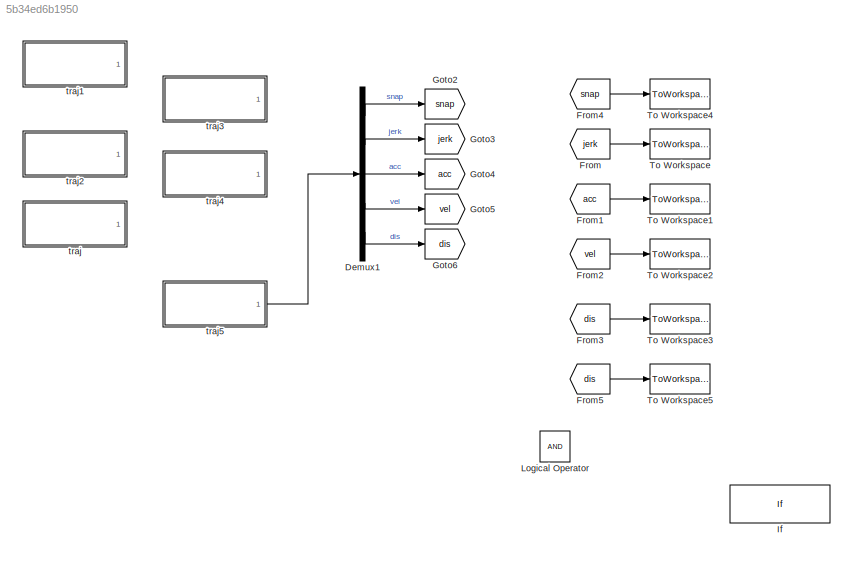
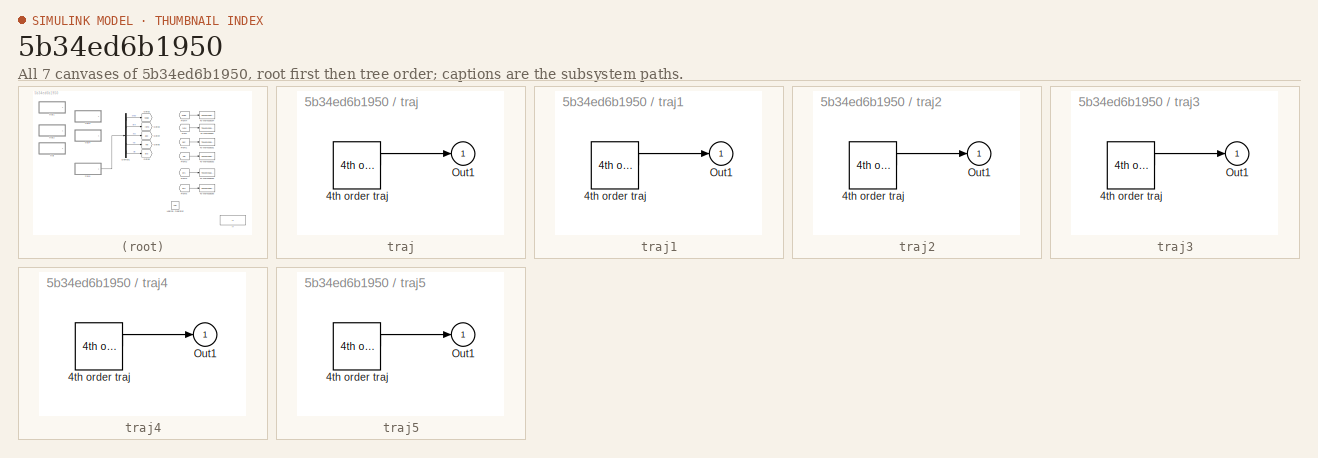
[diagram: thumbnail index - all 7 canvases of the model, root first then tree order]
MODEL slx_5b34ed6b1950
KIND model
CONFIG AbsTol = auto
CONFIG EnableMultiTasking = off
CONFIG FixedStep = 5e-5
CONFIG MaxStep = 0.0002
CONFIG MinStep = auto
CONFIG RelTol = 1e-3
CONFIG SampleTimeConstraint = Unconstrained
CONFIG Solver = VariableStepAuto
CONFIG SolverName = VariableStepAuto
CONFIG StartTime = 0.0
CONFIG StopTime = 1.6
BLOCK [Demux] Demux1
  DisplayOption = bar
  Outputs = 5
  Ports = [1, 5]
BLOCK [From] From
  GotoTag = jerk
BLOCK [From] From1
  GotoTag = acc
BLOCK [From] From2
  GotoTag = vel
BLOCK [From] From3
  GotoTag = dis
BLOCK [From] From4
  GotoTag = snap
BLOCK [From] From5
  GotoTag = dis
BLOCK [Goto] Goto2
  GotoTag = snap
BLOCK [Goto] Goto3
  GotoTag = jerk
BLOCK [Goto] Goto4
  GotoTag = acc
BLOCK [Goto] Goto5
  GotoTag = vel
BLOCK [Goto] Goto6
  GotoTag = dis
BLOCK [If] If
  Ports = [1, 2]
BLOCK [Logic] Logical Operator
  AllPortsSameDT = off
  OutDataTypeStr = boolean
  Ports = [2, 1]
BLOCK [ToWorkspace] To Workspace
  FixptAsFi = on
  MaxDataPoints = inf
  Ports = [1]
  SampleTime = -1
  Save2DSignal = 3-D array (concatenate along third dimension)
  SaveFormat = Structure With Time
  VariableName = jerk
BLOCK [ToWorkspace] To Workspace1
  FixptAsFi = on
  MaxDataPoints = inf
  Ports = [1]
  SampleTime = -1
  Save2DSignal = 3-D array (concatenate along third dimension)
  SaveFormat = Structure With Time
  VariableName = acc
BLOCK [ToWorkspace] To Workspace2
  FixptAsFi = on
  MaxDataPoints = inf
  Ports = [1]
  SampleTime = -1
  Save2DSignal = 3-D array (concatenate along third dimension)
  SaveFormat = Structure With Time
  VariableName = vel
BLOCK [ToWorkspace] To Workspace3
  FixptAsFi = on
  MaxDataPoints = inf
  Ports = [1]
  SampleTime = -1
  Save2DSignal = 3-D array (concatenate along third dimension)
  SaveFormat = Structure With Time
  VariableName = dis
BLOCK [ToWorkspace] To Workspace4
  FixptAsFi = on
  MaxDataPoints = inf
  Ports = [1]
  SampleTime = -1
  Save2DSignal = 3-D array (concatenate along third dimension)
  SaveFormat = Structure With Time
  VariableName = snap
BLOCK [ToWorkspace] To Workspace5
  FixptAsFi = on
  MaxDataPoints = inf
  Ports = [1]
  SampleTime = 0.0002
  VariableName = traj
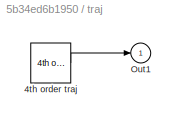
BLOCK [SubSystem] traj
  AttributesFormatString = %<BlockChoice>
  BlockChoice = 4th order traj
  Commented = on
  MemberBlocks = 2th order traj,3rd order traj,4th order traj,step
  Ports = [0, 1]
  RequestExecContextInheritance = off
  TemplateBlock = model_controller/Profile Generators/traj
BLOCK [Reference] traj/4th order traj  REF=model_controller/Profile Generators/4th order traj  (lib defined in slx_45dcb428d456)
  Ports = [0, 1]
  SourceBlock = model_controller/Profile Generators/4th order traj
  SourceType = 4th Order Profile Generator
BLOCK [Outport] traj/Out1
  IconDisplay = Port number
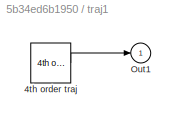
BLOCK [SubSystem] traj1
  AttributesFormatString = %<BlockChoice>
  BlockChoice = 4th order traj
  Commented = on
  MemberBlocks = 2th order traj,3rd order traj,4th order traj,step
  Ports = [0, 1]
  RequestExecContextInheritance = off
  TemplateBlock = model_controller/Profile Generators/traj
BLOCK [Reference] traj1/4th order traj  REF=model_controller/Profile Generators/4th order traj  (lib defined in slx_45dcb428d456)
  Ports = [0, 1]
  SourceBlock = model_controller/Profile Generators/4th order traj
  SourceType = 4th Order Profile Generator
BLOCK [Outport] traj1/Out1
  IconDisplay = Port number
BLOCK [SubSystem] traj2
  AttributesFormatString = %<BlockChoice>
  BlockChoice = 4th order traj
  Commented = on
  MemberBlocks = 2th order traj,3rd order traj,4th order traj,step
  Ports = [0, 1]
  RequestExecContextInheritance = off
  TemplateBlock = model_controller/Profile Generators/traj
BLOCK [Reference] traj2/4th order traj  REF=model_controller/Profile Generators/4th order traj  (lib defined in slx_45dcb428d456)
  Ports = [0, 1]
  SourceBlock = model_controller/Profile Generators/4th order traj
  SourceType = 4th Order Profile Generator
BLOCK [Outport] traj2/Out1
  IconDisplay = Port number
BLOCK [SubSystem] traj3
  AttributesFormatString = %<BlockChoice>
  BlockChoice = 4th order traj
  MemberBlocks = 2th order traj,3rd order traj,4th order traj,step
  Ports = [0, 1]
  RequestExecContextInheritance = off
  TemplateBlock = model_controller/Profile Generators/traj
BLOCK [Reference] traj3/4th order traj  REF=model_controller/Profile Generators/4th order traj  (lib defined in slx_45dcb428d456)
  Ports = [0, 1]
  SourceBlock = model_controller/Profile Generators/4th order traj
  SourceType = 4th Order Profile Generator
BLOCK [Outport] traj3/Out1
  IconDisplay = Port number
BLOCK [SubSystem] traj4
  AttributesFormatString = %<BlockChoice>
  BlockChoice = 4th order traj
  MemberBlocks = 2th order traj,3rd order traj,4th order traj,step
  Ports = [0, 1]
  RequestExecContextInheritance = off
  TemplateBlock = model_controller/Profile Generators/traj
BLOCK [Reference] traj4/4th order traj  REF=model_controller/Profile Generators/4th order traj  (lib defined in slx_45dcb428d456)
  Ports = [0, 1]
  SourceBlock = model_controller/Profile Generators/4th order traj
  SourceType = 4th Order Profile Generator
BLOCK [Outport] traj4/Out1
  IconDisplay = Port number
BLOCK [SubSystem] traj5
  AttributesFormatString = %<BlockChoice>
  BlockChoice = 4th order traj
  MemberBlocks = 2th order traj,3rd order traj,4th order traj,step
  Ports = [0, 1]
  RequestExecContextInheritance = off
  TemplateBlock = model_controller/Profile Generators/traj
BLOCK [Reference] traj5/4th order traj  REF=model_controller/Profile Generators/4th order traj  (lib defined in slx_45dcb428d456)
  Ports = [0, 1]
  SourceBlock = model_controller/Profile Generators/4th order traj
  SourceType = 4th Order Profile Generator
BLOCK [Outport] traj5/Out1
  IconDisplay = Port number
LINE Demux1:1 -> Goto2:1
LINE Demux1:2 -> Goto3:1
LINE Demux1:3 -> Goto4:1
LINE Demux1:4 -> Goto5:1
LINE Demux1:5 -> Goto6:1
LINE From1:1 -> To Workspace1:1
LINE From2:1 -> To Workspace2:1
LINE From3:1 -> To Workspace3:1
LINE From4:1 -> To Workspace4:1
LINE From5:1 -> To Workspace5:1
LINE From:1 -> To Workspace:1
LINE traj5:1 -> Demux1:1
